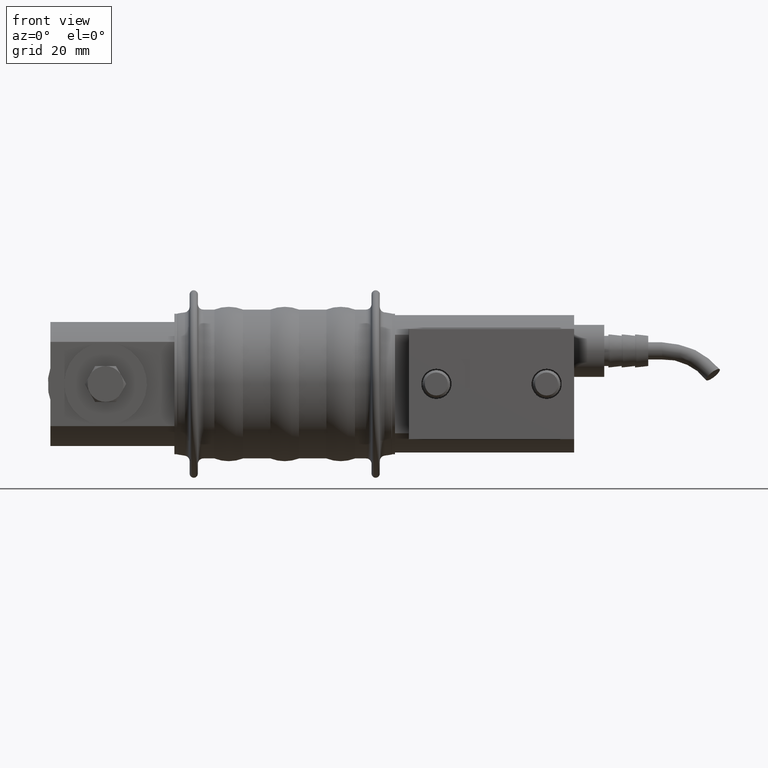
[diagram: clean part render]
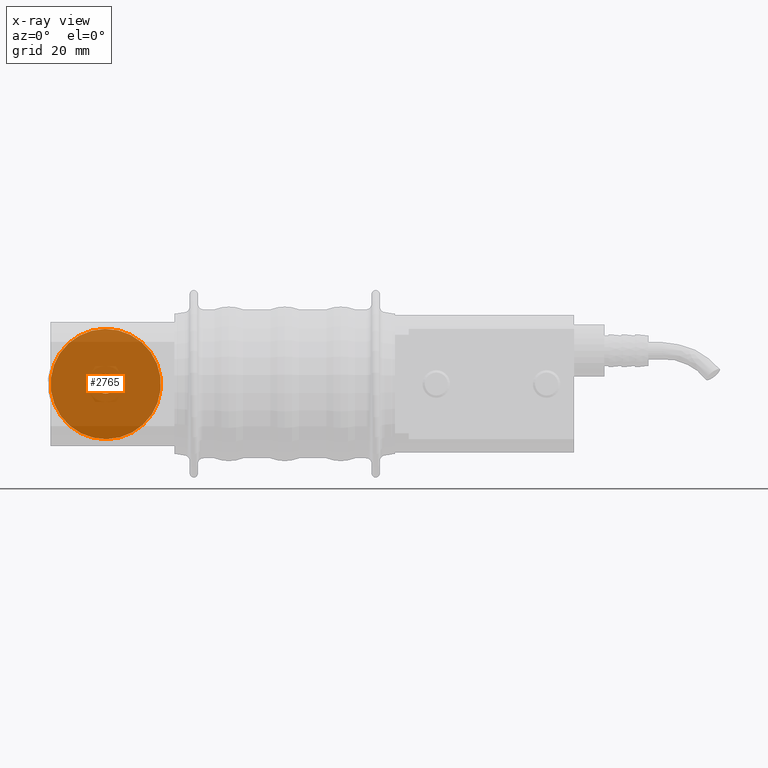
[diagram: x-ray — body ghosted, one internal face saturated and labeled with its STEP entity id]
A machine part, front view, then the same camera in x-ray: the body is ghosted and one INTERNAL B-rep face — a face not visible from any outside direction — is saturated and labeled: STEP entity #2765.
In plain terms, the highlighted planar face has unit normal (0, -1, 0).
Its self-contained STEP definition (entity closure, byte-faithful):
#213 = DIRECTION ( 'NONE',  ( 0.0000000000000000000, 0.0000000000000000000, -1.000000000000000000 ) ) ;
#278 = FACE_OUTER_BOUND ( 'NONE', #1667, .T. ) ;
#280 = CARTESIAN_POINT ( 'NONE',  ( 0.0000000000000000000, 2.000000000000001800, 0.0000000000000000000 ) ) ;
#324 = EDGE_CURVE ( 'NONE', #4777, #1128, #6005, .T. ) ;
#610 = CARTESIAN_POINT ( 'NONE',  ( 2.449293598294706500E-015, 2.000000000000001800, 20.00000000000000000 ) ) ;
#826 = DIRECTION ( 'NONE',  ( 0.0000000000000000000, -1.000000000000000000, 0.0000000000000000000 ) ) ;
#1069 = CIRCLE ( 'NONE', #4475, 20.00000000000000000 ) ;
#1111 = CARTESIAN_POINT ( 'NONE',  ( 0.03416651719589936000, 2.000000000000001800, 3.570906291284694500 ) ) ;
#1128 = VERTEX_POINT ( 'NONE', #610 ) ;
#1181 = ORIENTED_EDGE ( 'NONE', *, *, #324, .T. ) ;
#1197 = ORIENTED_EDGE ( 'NONE', *, *, #2489, .F. ) ;
#1204 = EDGE_CURVE ( 'NONE', #1128, #4777, #1069, .T. ) ;
#1400 = CIRCLE ( 'NONE', #1592, 3.499999999999997800 ) ;
#1506 = VERTEX_POINT ( 'NONE', #2463 ) ;
#1592 = AXIS2_PLACEMENT_3D ( 'NONE', #2948, #6687, #4033 ) ;
#1667 = EDGE_LOOP ( 'NONE', ( #1181, #5086 ) ) ;
#1803 = PLANE ( 'NONE',  #3067 ) ;
#2463 = CARTESIAN_POINT ( 'NONE',  ( 0.03416651719589979000, 2.000000000000001800, -3.429093708715301100 ) ) ;
#2489 = EDGE_CURVE ( 'NONE', #1506, #4058, #5217, .T. ) ;
#2744 = CARTESIAN_POINT ( 'NONE',  ( 0.0000000000000000000, 2.000000000000001800, -20.00000000000000000 ) ) ;
#2765 = ADVANCED_FACE ( 'NONE', ( #4800, #278 ), #1803, .T. ) ;
#2939 = CARTESIAN_POINT ( 'NONE',  ( 0.0000000000000000000, 2.000000000000001800, 0.0000000000000000000 ) ) ;
#2948 = CARTESIAN_POINT ( 'NONE',  ( 0.03416651719589936000, 2.000000000000001800, 0.07090629128469680400 ) ) ;
#3067 = AXIS2_PLACEMENT_3D ( 'NONE', #3408, #4010, #6065 ) ;
#3408 = CARTESIAN_POINT ( 'NONE',  ( 0.0000000000000000000, 2.000000000000001800, 0.0000000000000000000 ) ) ;
#3446 = EDGE_LOOP ( 'NONE', ( #6226, #1197 ) ) ;
#3769 = DIRECTION ( 'NONE',  ( 0.0000000000000000000, 0.0000000000000000000, -1.000000000000000000 ) ) ;
#3799 = DIRECTION ( 'NONE',  ( 0.0000000000000000000, -1.000000000000000000, 0.0000000000000000000 ) ) ;
#4010 = DIRECTION ( 'NONE',  ( 0.0000000000000000000, -1.000000000000000000, 0.0000000000000000000 ) ) ;
#4033 = DIRECTION ( 'NONE',  ( 0.0000000000000000000, 0.0000000000000000000, -1.000000000000000000 ) ) ;
#4058 = VERTEX_POINT ( 'NONE', #1111 ) ;
#4441 = AXIS2_PLACEMENT_3D ( 'NONE', #5875, #3799, #3769 ) ;
#4475 = AXIS2_PLACEMENT_3D ( 'NONE', #280, #826, #6173 ) ;
#4777 = VERTEX_POINT ( 'NONE', #2744 ) ;
#4800 = FACE_BOUND ( 'NONE', #3446, .T. ) ;
#5086 = ORIENTED_EDGE ( 'NONE', *, *, #1204, .T. ) ;
#5217 = CIRCLE ( 'NONE', #4441, 3.499999999999997800 ) ;
#5581 = AXIS2_PLACEMENT_3D ( 'NONE', #2939, #5587, #213 ) ;
#5587 = DIRECTION ( 'NONE',  ( 0.0000000000000000000, -1.000000000000000000, 0.0000000000000000000 ) ) ;
#5759 = EDGE_CURVE ( 'NONE', #4058, #1506, #1400, .T. ) ;
#5875 = CARTESIAN_POINT ( 'NONE',  ( 0.03416651719589936000, 2.000000000000001800, 0.07090629128469680400 ) ) ;
#6005 = CIRCLE ( 'NONE', #5581, 20.00000000000000000 ) ;
#6065 = DIRECTION ( 'NONE',  ( 0.0000000000000000000, 0.0000000000000000000, -1.000000000000000000 ) ) ;
#6173 = DIRECTION ( 'NONE',  ( 0.0000000000000000000, 0.0000000000000000000, -1.000000000000000000 ) ) ;
#6226 = ORIENTED_EDGE ( 'NONE', *, *, #5759, .F. ) ;
#6687 = DIRECTION ( 'NONE',  ( 0.0000000000000000000, -1.000000000000000000, 0.0000000000000000000 ) ) ;